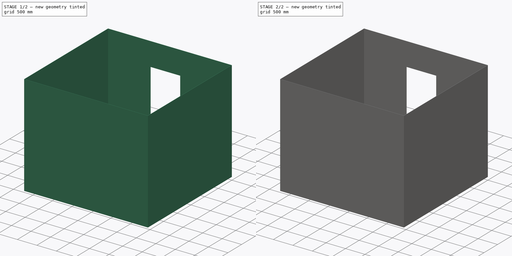
[diagram: build sequence overview — one tinted view per stage of 2, left to right]
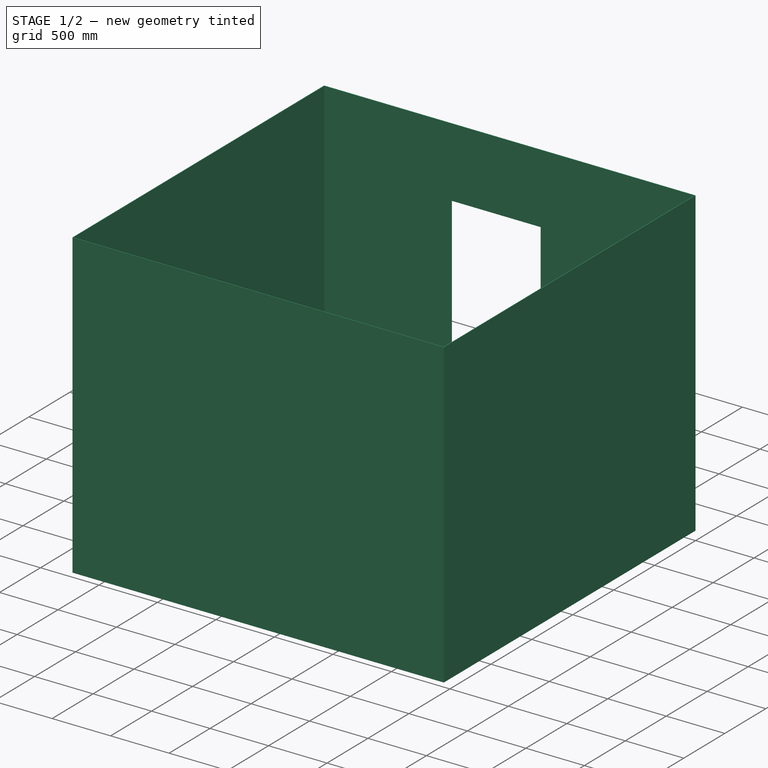
[diagram: stage 1 of 2 — iso view after this stage's code; geometry added in this stage tinted green]
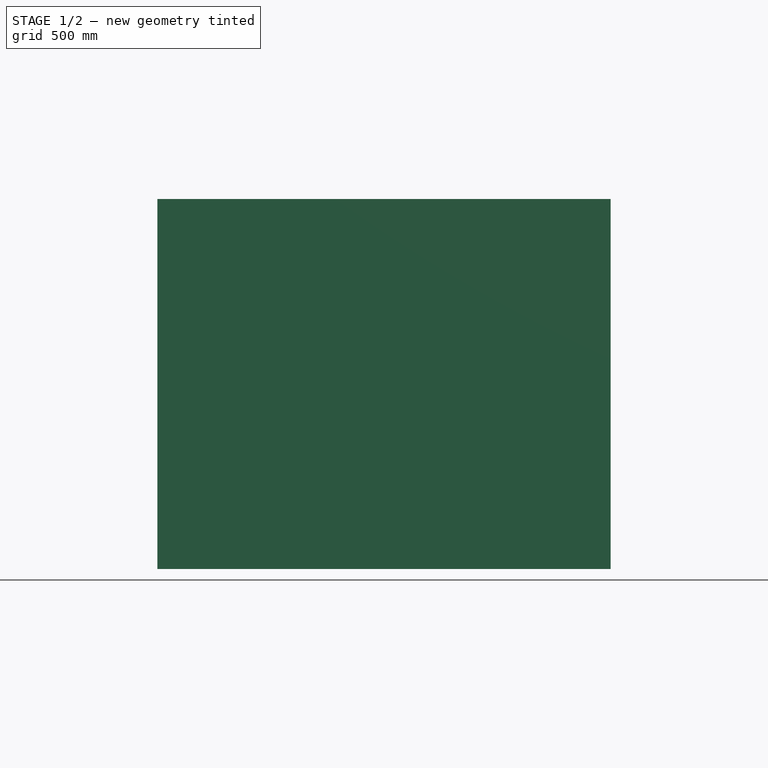
[diagram: stage 1 of 2 — front view after this stage's code; geometry added in this stage tinted green]
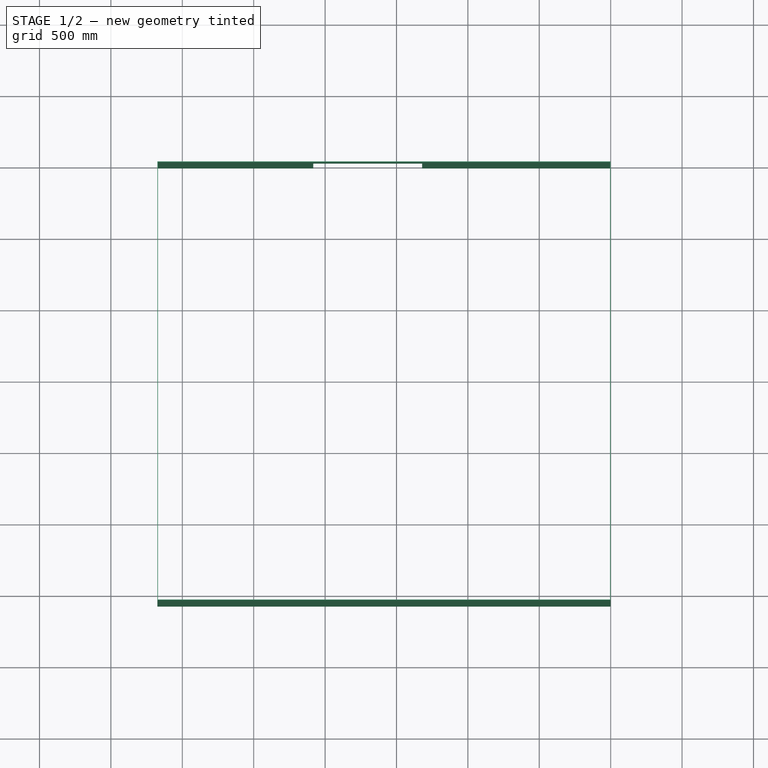
[diagram: stage 1 of 2 — top view after this stage's code; geometry added in this stage tinted green]
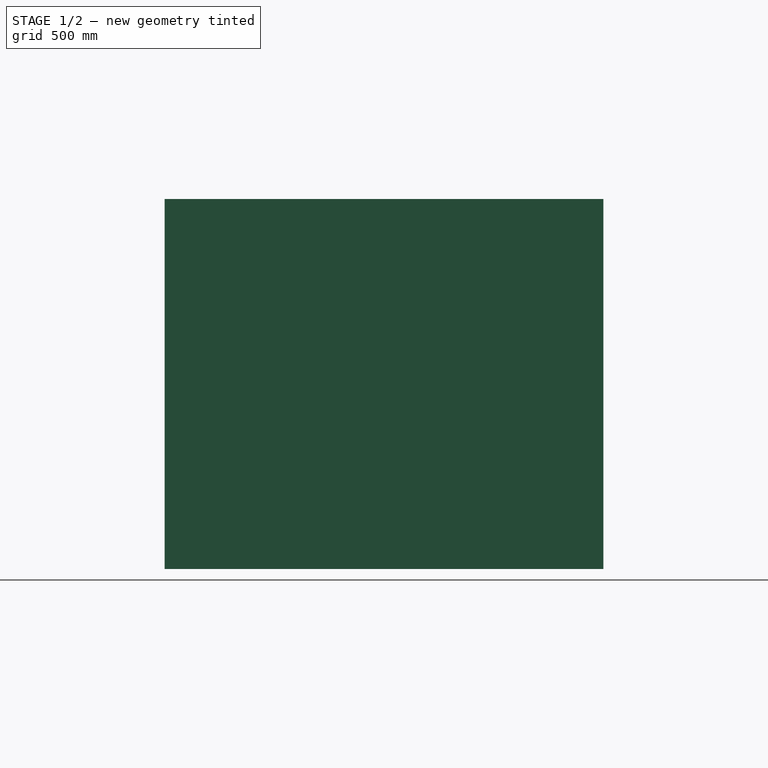
[diagram: stage 1 of 2 — right view after this stage's code; geometry added in this stage tinted green]
FCSTD DOCUMENT  (FreeCAD 0.18.3R)
Label: room
License: All rights reserved
LicenseURL: http://en.wikipedia.org/wiki/All_rights_reserved
objects: Sketcher::SketchObject×3, PartDesign::Pad×2, App::MeasureDistance×1, PartDesign::Pocket×1, PartDesign::Body×1
note: 10 computed .brp shape members not serialized (recipe doc carries the construction recipe); baked Part::Feature solids carry a one-line shape summary decoded from their .brp

FEATURE [Sketcher::SketchObject] Sketch
  MapMode = 5
  Support = -> [XY_Plane]
  sketch-geometry (8):
    g0: LineSegment StartX=0 StartY=0 StartZ=0 EndX=-3175 EndY=0 EndZ=0
    g1: LineSegment StartX=-3175 StartY=0 StartZ=0 EndX=-3175 EndY=-3073.4 EndZ=0
    g2: LineSegment StartX=-3175 StartY=-3073.4 StartZ=0 EndX=0 EndY=-3073.4 EndZ=0
    g3: LineSegment StartX=0 StartY=-3073.4 StartZ=0 EndX=0 EndY=0 EndZ=0
    g4: LineSegment StartX=-5 StartY=-5 StartZ=0 EndX=-3170 EndY=-5 EndZ=0
    g5: LineSegment StartX=-3170 StartY=-5 StartZ=0 EndX=-3170 EndY=-3068.4 EndZ=0
    g6: LineSegment StartX=-3170 StartY=-3068.4 StartZ=0 EndX=-5 EndY=-3068.4 EndZ=0
    g7: LineSegment StartX=-5 StartY=-3068.4 StartZ=0 EndX=-5 EndY=-5 EndZ=0
  constraints (23):
    c: Coincident(g0,g1)
    c: Coincident(g1,g2)
    c: Coincident(g2,g3)
    c: Coincident(g3,g0)
    c: Horizontal(g0)
    c: Horizontal(g2)
    c: Vertical(g1)
    c: Vertical(g3)
    c: Coincident(g0,g-1)
    c: Coincident(g4,g5)
    c: Coincident(g5,g6)
    c: Coincident(g6,g7)
    c: Coincident(g7,g4)
    c: Horizontal(g4)
    c: Horizontal(g6)
    c: Vertical(g5)
    c: Vertical(g7)
    c: DistanceX(g0,g0) = 3175
    c: DistanceY(g3,g3) = 3073.4
    c: DistanceY(g4,g0) = 5
    c: DistanceX(g4,g0) = 5
    c: DistanceY(g2,g6) = 5
    c: DistanceX(g0,g4) = 5
FEATURE [PartDesign::Pad] Pad
  Length = 2590.8
  Length2 = 100
  Profile = -> Sketch
  Type = 0
FEATURE [App::MeasureDistance] Distance  label="Distance: 10' 5+1/2""
  Distance = 3189.26
  P1 = (0,-3073.4,2151.2)
  P2 = (-3175,-3073.4,1849.93)
FEATURE [Sketcher::SketchObject] Sketch001
  MapMode = 5
  Placement = pos=(0,0,0) rot=(0,0.707107,0.707107;3.14159rad)
  Support = -> [Pad]
  sketch-geometry (4):
    g0: LineSegment StartX=1320.8 StartY=0 StartZ=0 EndX=2082.8 EndY=0 EndZ=0
    g1: LineSegment StartX=2082.8 StartY=0 StartZ=0 EndX=2082.8 EndY=1993.9 EndZ=0
    g2: LineSegment StartX=2082.8 StartY=1993.9 StartZ=0 EndX=1320.8 EndY=1993.9 EndZ=0
    g3: LineSegment StartX=1320.8 StartY=1993.9 StartZ=0 EndX=1320.8 EndY=0 EndZ=0
  constraints (12):
    c: Coincident(g0,g1)
    c: Coincident(g1,g2)
    c: Coincident(g2,g3)
    c: Coincident(g3,g0)
    c: Horizontal(g0)
    c: Horizontal(g2)
    c: Vertical(g1)
    c: Vertical(g3)
    c: DistanceX(g-1,g0) = 1320.8
    c: DistanceX(g0,g0) = 762
    c: DistanceY(g1,g1) = 1993.9
    c: PointOnObject(g0,g-1)
FEATURE [PartDesign::Pocket] Pocket
  BaseFeature = -> Pad
  Length = 107.95
  Length2 = 98.425
  Profile = -> Sketch001
  Type = 0
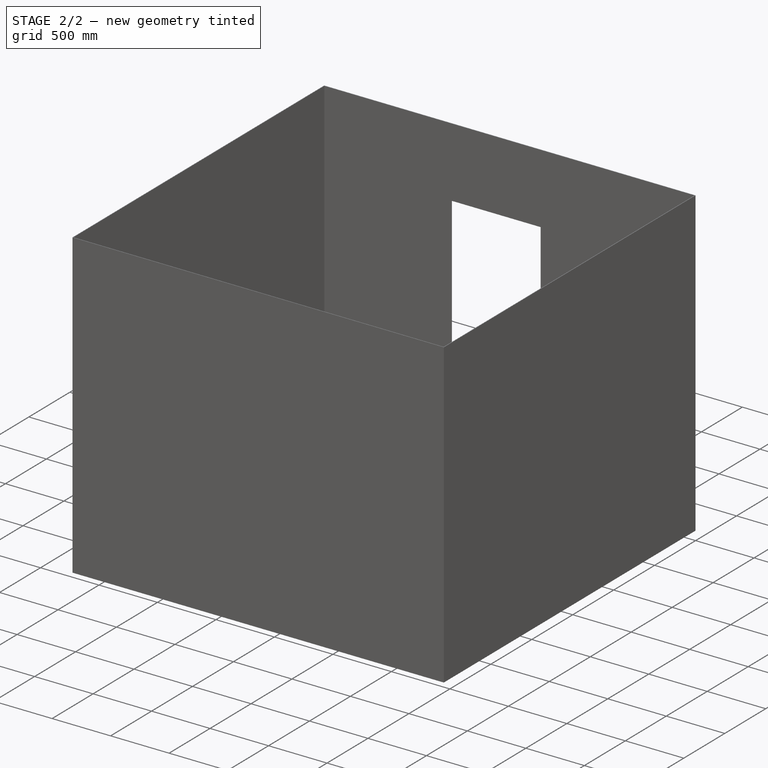
[diagram: stage 2 of 2 — iso view after this stage's code; geometry added in this stage tinted green]
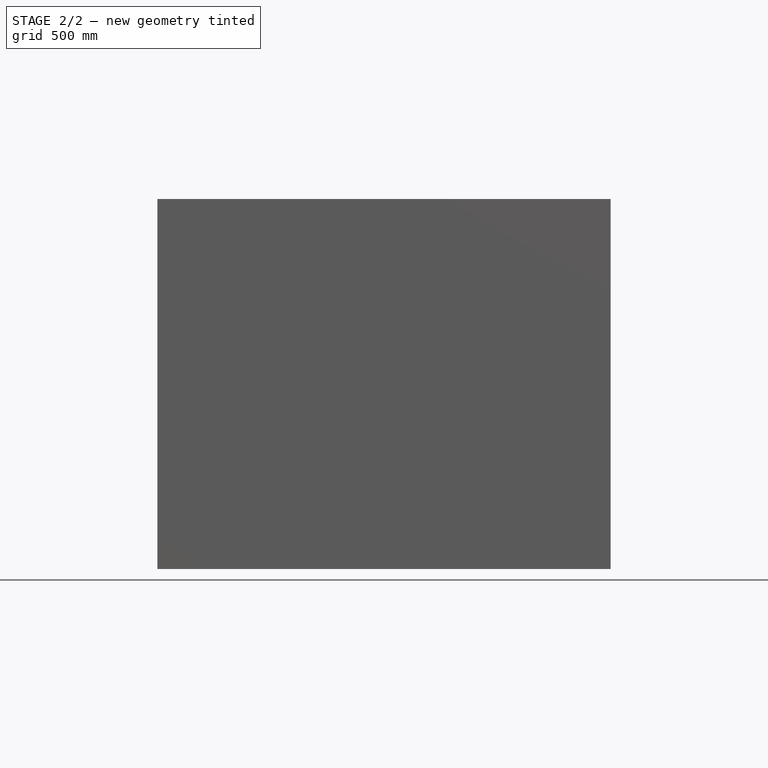
[diagram: stage 2 of 2 — front view after this stage's code; geometry added in this stage tinted green]
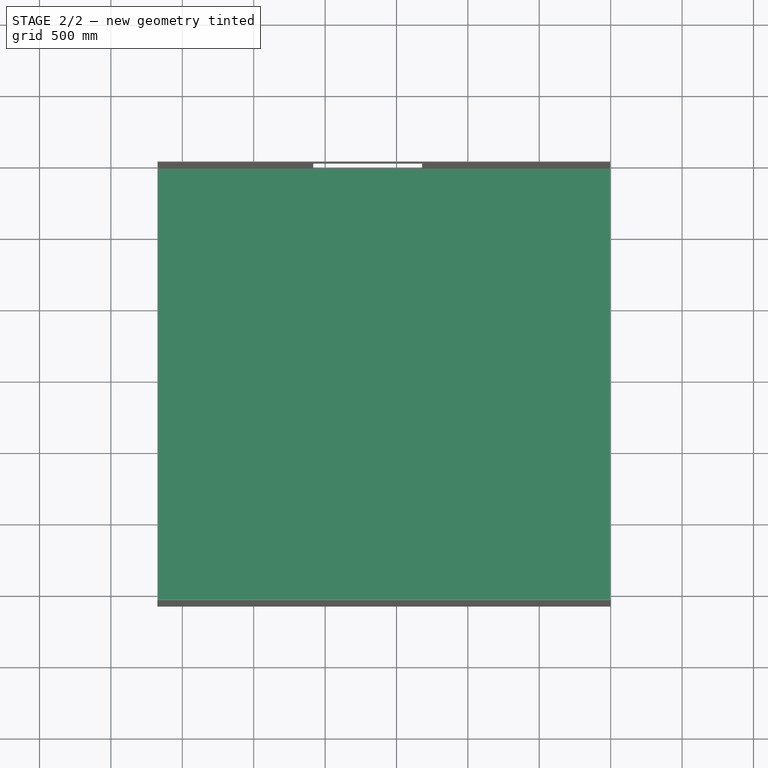
[diagram: stage 2 of 2 — top view after this stage's code; geometry added in this stage tinted green]
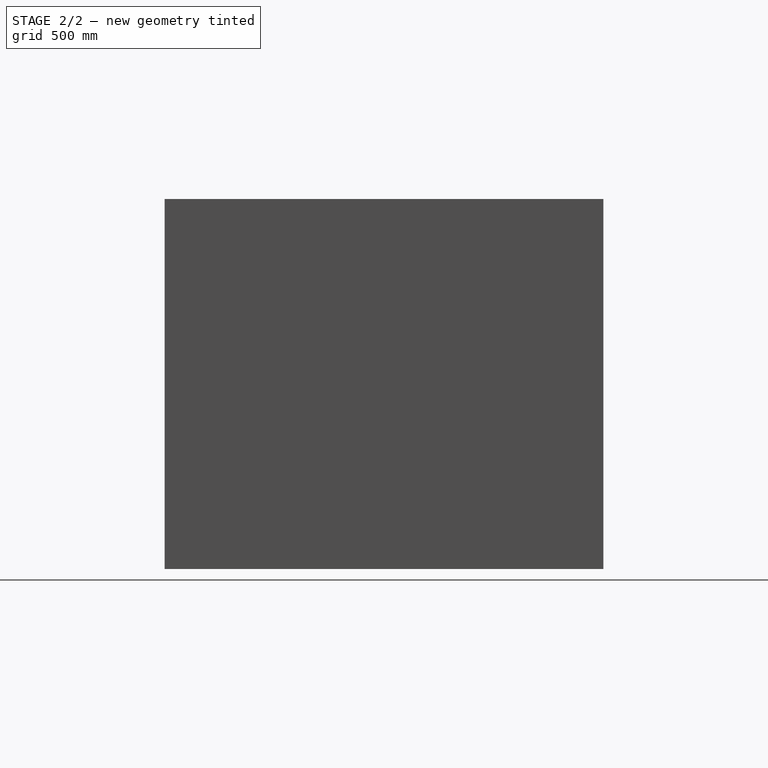
[diagram: stage 2 of 2 — right view after this stage's code; geometry added in this stage tinted green]
FEATURE [Sketcher::SketchObject] Sketch002
  ExternalGeometry = -> [Pocket]
  MapMode = 5
  Placement = pos=(0,0,0) rot=(1,0,0;3.14159rad)
  Support = -> [Pocket]
  sketch-geometry (4):
    g0: LineSegment StartX=-3170 StartY=5 StartZ=0 EndX=-5 EndY=5 EndZ=0
    g1: LineSegment StartX=-3170 StartY=5 StartZ=0 EndX=-3170 EndY=3068.4 EndZ=0
    g2: LineSegment StartX=-5 StartY=3068.4 StartZ=0 EndX=-3170 EndY=3068.4 EndZ=0
    g3: LineSegment StartX=-5 StartY=5 StartZ=0 EndX=-5 EndY=3068.4 EndZ=0
  constraints (8):
    c: Coincident(g0,g-3)
    c: Coincident(g0,g-5)
    c: Coincident(g1,g0)
    c: Coincident(g1,g-4)
    c: Coincident(g2,g-5)
    c: Coincident(g2,g1)
    c: Coincident(g3,g0)
    c: Coincident(g3,g2)
FEATURE [PartDesign::Pad] Pad001
  BaseFeature = -> Pocket
  Length = 9.525
  Length2 = 98.425
  Profile = -> Sketch002
  Reversed = true
  Type = 0
FEATURE [PartDesign::Body] Body
  Group = -> [Sketch,Pad,Sketch001,Pocket,Sketch002,Pad001]
  Origin = -> Origin
  Tip = -> Pad001
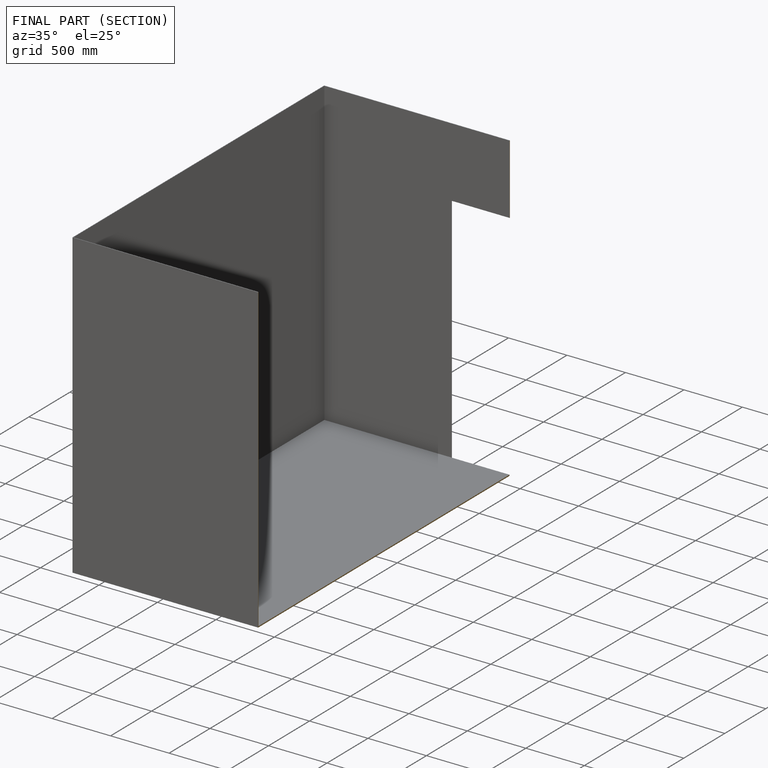
[diagram: finished part — half-section view (interior)]
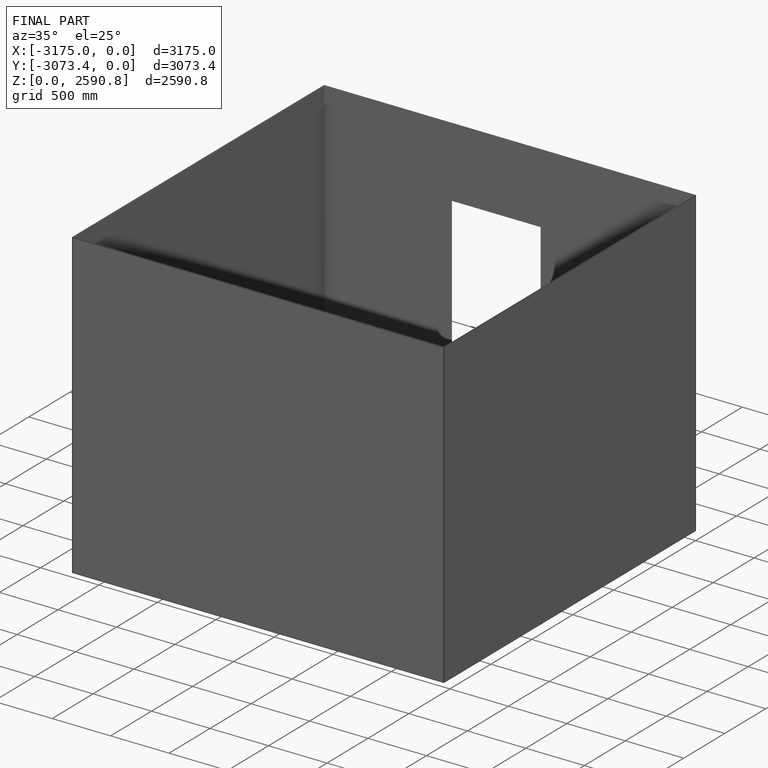
[diagram: finished part — iso view with bounding-box wireframe]
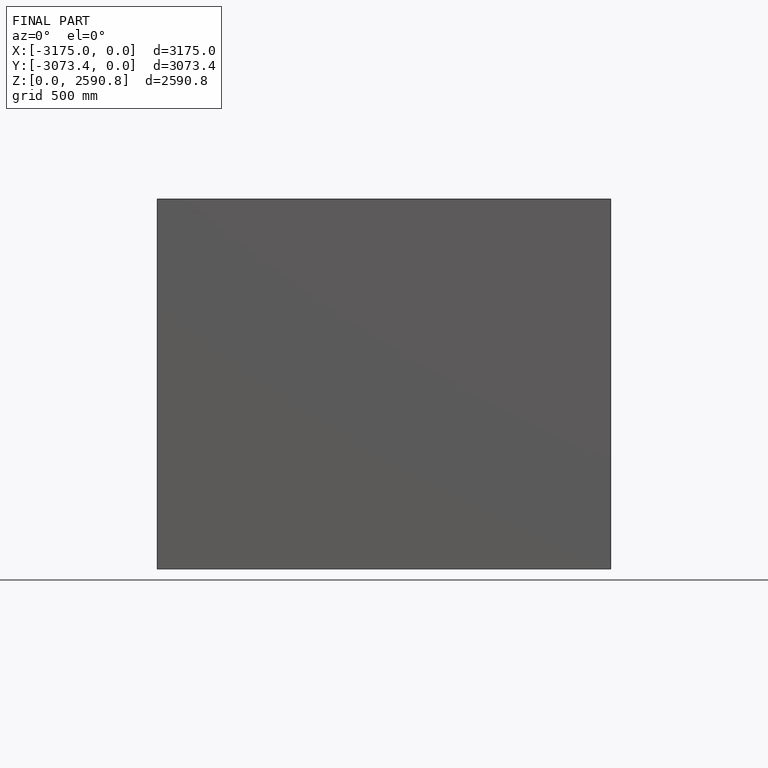
[diagram: finished part — front view with bounding-box wireframe]
